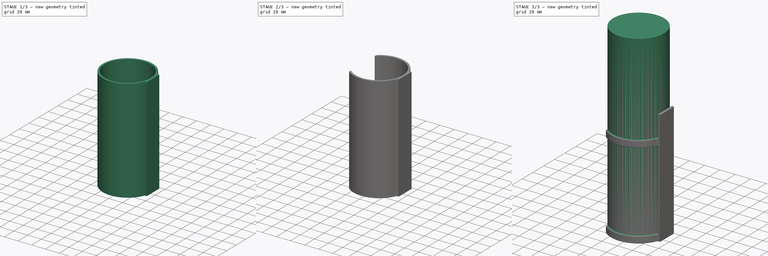
[diagram: build sequence overview — one tinted view per stage of 3, left to right]
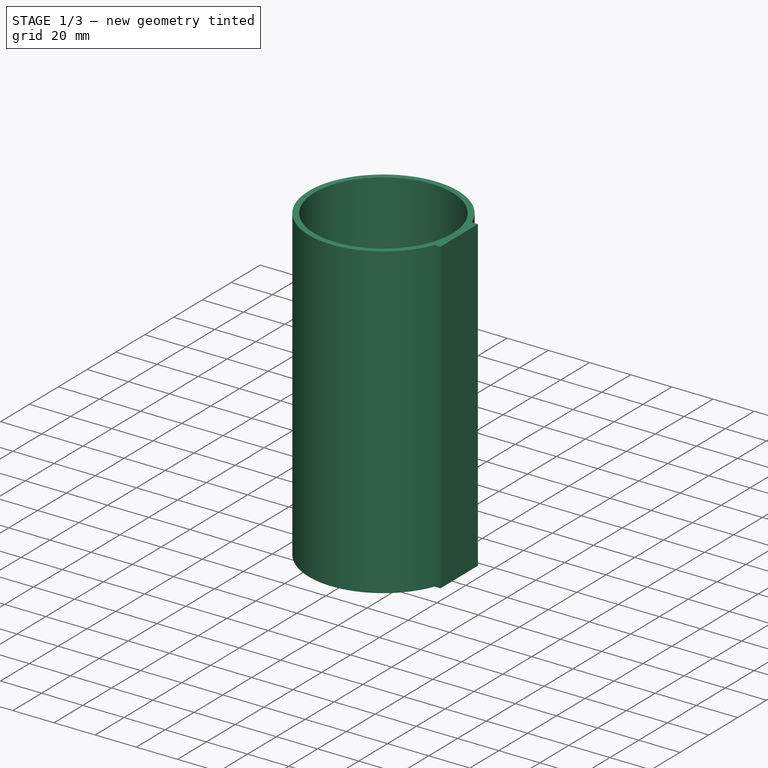
[diagram: stage 1 of 3 — iso view after this stage's code; geometry added in this stage tinted green]
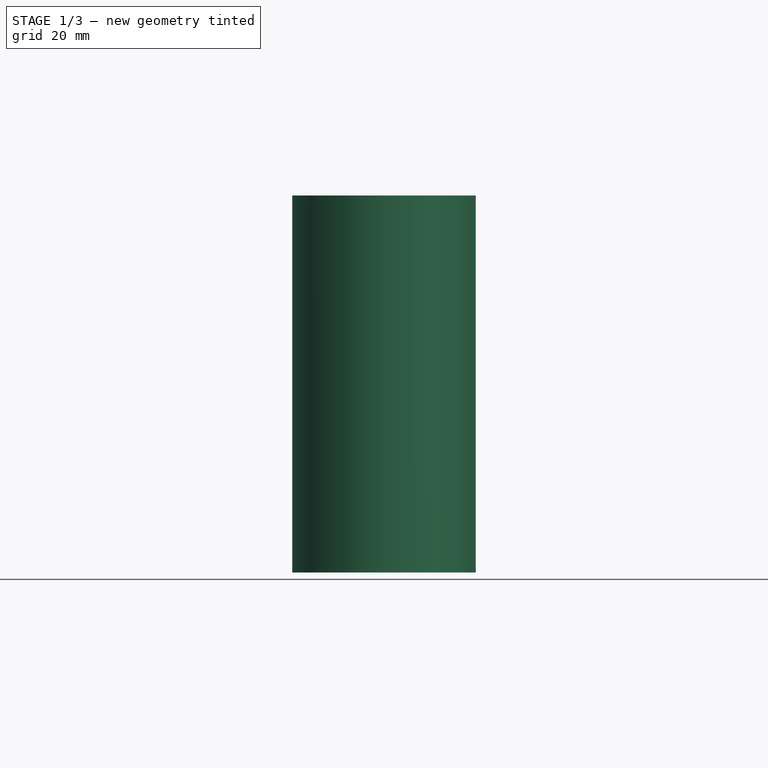
[diagram: stage 1 of 3 — front view after this stage's code; geometry added in this stage tinted green]
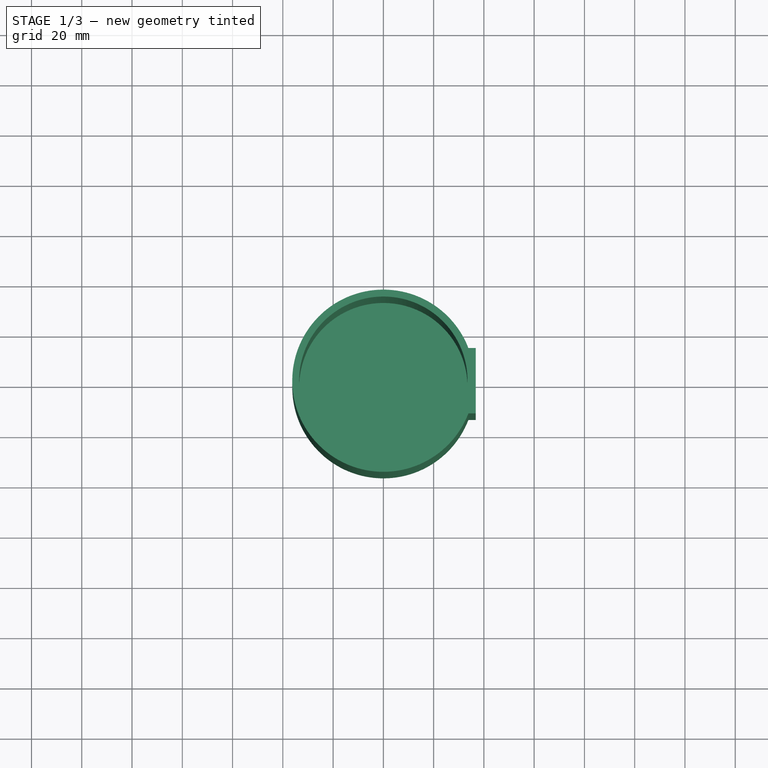
[diagram: stage 1 of 3 — top view after this stage's code; geometry added in this stage tinted green]
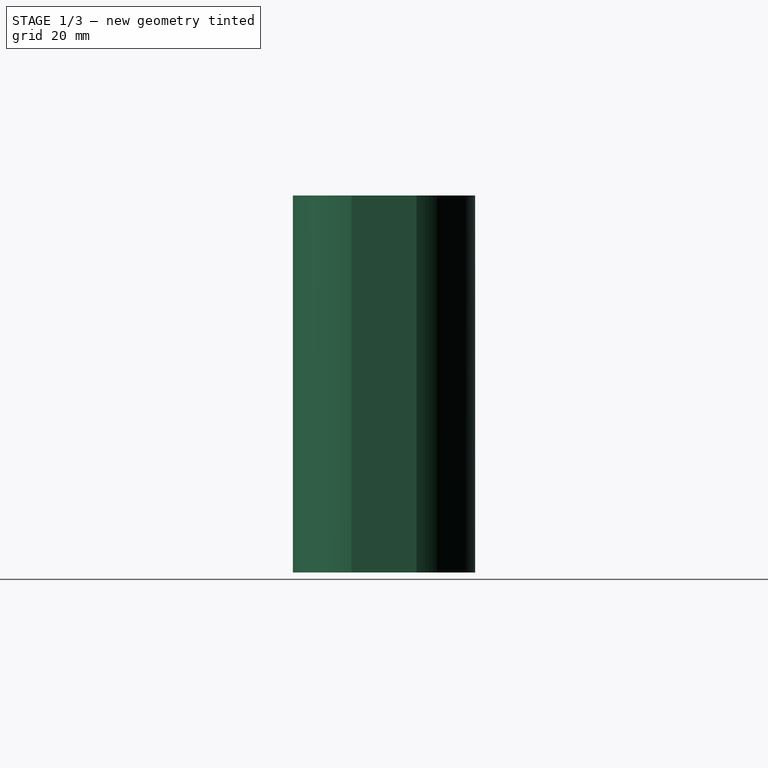
[diagram: stage 1 of 3 — right view after this stage's code; geometry added in this stage tinted green]
FCSTD DOCUMENT  (FreeCAD 1.0R39109 (Git))
Label: exinguisher_mount
License: All rights reserved
objects: Sketcher::SketchObject×6, PartDesign::Pad×4, PartDesign::Body×2, PartDesign::Pocket×2, PartDesign::Fillet×2, Spreadsheet::Sheet×1
note: 38 computed .brp shape members not serialized (recipe doc carries the construction recipe); baked Part::Feature solids carry a one-line shape summary decoded from their .brp

FEATURE [PartDesign::Body] Body  label="exitinguisher"
  AllowCompound = false
  Group = -> [Sketch,Pad]
  Origin = -> Origin
  Placement = pos=(0,0,3) rot=(0,0,1;0rad)
  Tip = -> Pad
  expr: .Placement.Base.z = <<dimensions>>.thickness
FEATURE [Sketcher::SketchObject] Sketch001
  ArcFitTolerance = 1e-06
  AttachmentSupport = -> [XY_Plane001]
  FullyConstrained = true
  MakeInternals = false
  MapMode = 5
  expr: Constraints[1] = <<dimensions>>.extinguisher_diameter + 2 * <<dimensions>>.thickness
  sketch-geometry (1):
    g0: Circle CenterX=0 CenterY=0 CenterZ=0 NormalX=0 NormalY=0 NormalZ=1 AngleXU=0 Radius=36.25
  constraints (2):
    c: Coincident(g0,g-1)
    c: Diameter(g0) = 72.5
FEATURE [PartDesign::Pad] Pad001
  Direction = (0,0,1)
  Length = 3
  Length2 = 10
  Profile = -> Sketch001
  ReferenceAxis = -> Sketch001 [N_Axis]
  Refine = true
  Suppressed = false
  Type = 0
  expr: Length = <<dimensions>>.thickness
FEATURE [Sketcher::SketchObject] Sketch002
  ArcFitTolerance = 1e-06
  AttachmentSupport = -> [XY_Plane001]
  FullyConstrained = true
  MakeInternals = false
  MapMode = 5
  expr: Constraints[1] = <<dimensions>>.extinguisher_diameter + <<dimensions>>.tolerance
  expr: Constraints[3] = <<dimensions>>.extinguisher_diameter + 2 * <<dimensions>>.thickness
  sketch-geometry (2):
    g0: Circle CenterX=0 CenterY=0 CenterZ=0 NormalX=0 NormalY=0 NormalZ=1 AngleXU=0 Radius=33.5
    g1: Circle CenterX=0 CenterY=0 CenterZ=0 NormalX=0 NormalY=0 NormalZ=1 AngleXU=0 Radius=36.25
  constraints (4):
    c: Coincident(g0,g-1)
    c: Diameter(g0) = 67
    c: Coincident(g1,g0)
    c: Diameter(g1) = 72.5
FEATURE [PartDesign::Pad] Pad002
  BaseFeature = -> Pad001
  Direction = (0,0,1)
  Length = 150
  Length2 = 10
  Profile = -> Sketch002
  ReferenceAxis = -> Sketch002 [N_Axis]
  Refine = true
  Suppressed = false
  Type = 0
  expr: Length = 150 mm
FEATURE [Sketcher::SketchObject] Sketch003
  ArcFitTolerance = 1e-06
  AttachmentSupport = -> [XY_Plane001]
  FullyConstrained = true
  MakeInternals = false
  MapMode = 5
  expr: Constraints[10] = <<dimensions>>.extinguisher_diameter / 2 + <<dimensions>>.tolerance
  expr: Constraints[11] = <<dimensions>>.thickness
  expr: Constraints[9] = 26 mm / 2
  sketch-geometry (4):
    g0: LineSegment StartX=36.75 StartY=13 StartZ=0 EndX=36.75 EndY=-13 EndZ=0
    g1: LineSegment StartX=36.75 StartY=-13 StartZ=0 EndX=33.75 EndY=-13 EndZ=0
    g2: LineSegment StartX=33.75 StartY=-13 StartZ=0 EndX=33.75 EndY=13 EndZ=0
    g3: LineSegment StartX=33.75 StartY=13 StartZ=0 EndX=36.75 EndY=13 EndZ=0
  constraints (12):
    c: Coincident(g0,g1)
    c: Coincident(g1,g2)
    c: Coincident(g2,g3)
    c: Coincident(g3,g0)
    c: Vertical(g0)
    c: Vertical(g2)
    c: Horizontal(g1)
    c: Horizontal(g3)
    c: DistanceY(g2,g2) = 26
    c: DistanceY(g1,g-1) = 13
    c: DistanceX(g-1,g1) = 33.75
    c: DistanceX(g1,g1) = 3
FEATURE [PartDesign::Pad] Pad003
  BaseFeature = -> Pad002
  Direction = (0,0,1)
  Length = 150
  Length2 = 10
  Profile = -> Sketch003
  ReferenceAxis = -> Sketch003 [N_Axis]
  Refine = true
  Suppressed = false
  Type = 0
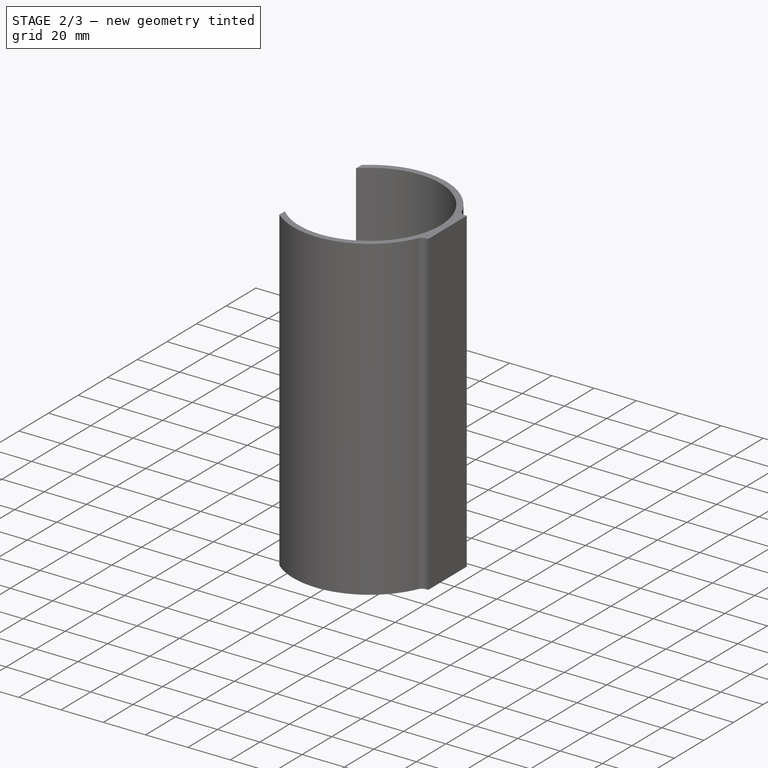
[diagram: stage 2 of 3 — iso view after this stage's code; geometry added in this stage tinted green]
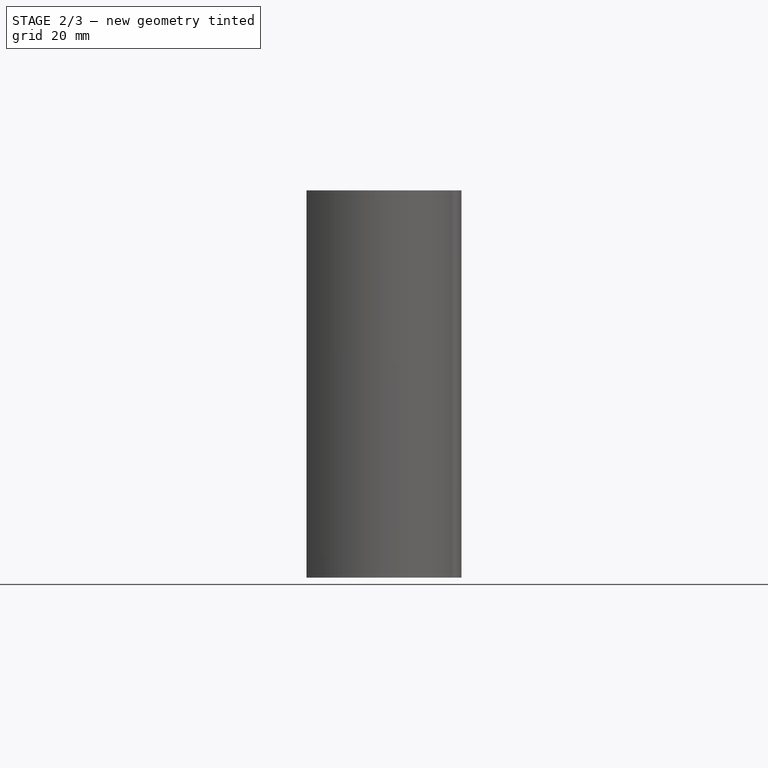
[diagram: stage 2 of 3 — front view after this stage's code; geometry added in this stage tinted green]
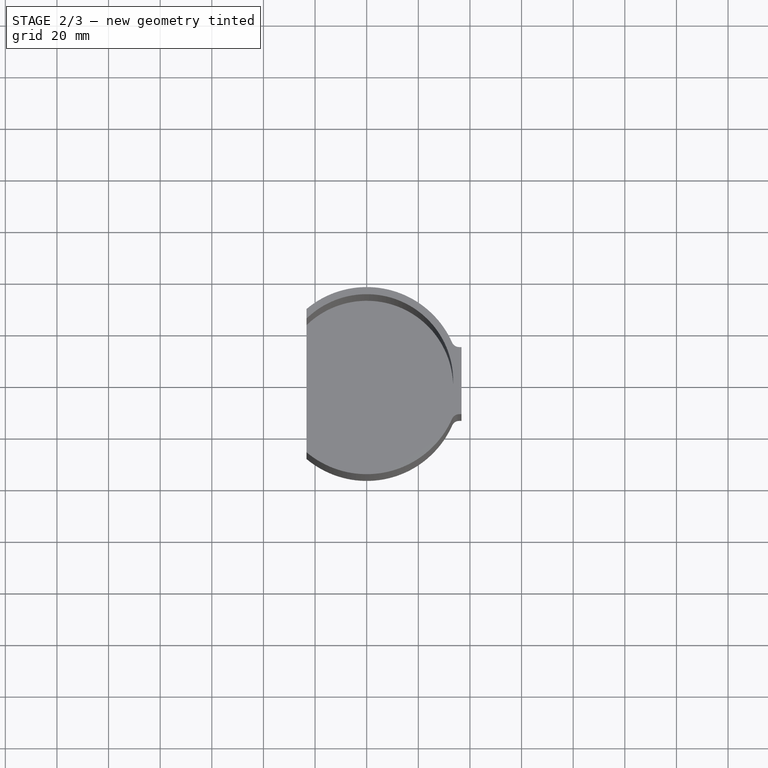
[diagram: stage 2 of 3 — top view after this stage's code; geometry added in this stage tinted green]
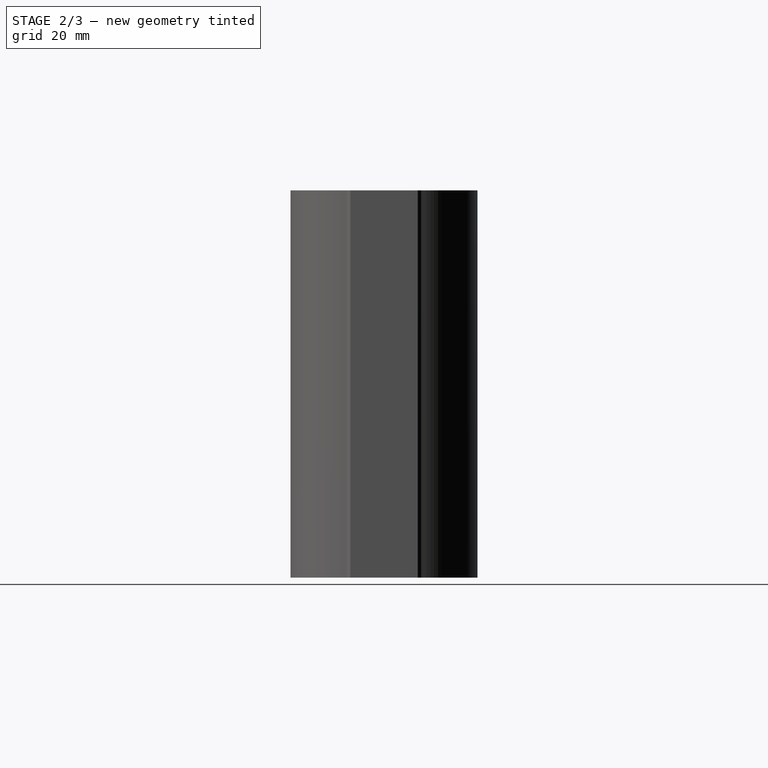
[diagram: stage 2 of 3 — right view after this stage's code; geometry added in this stage tinted green]
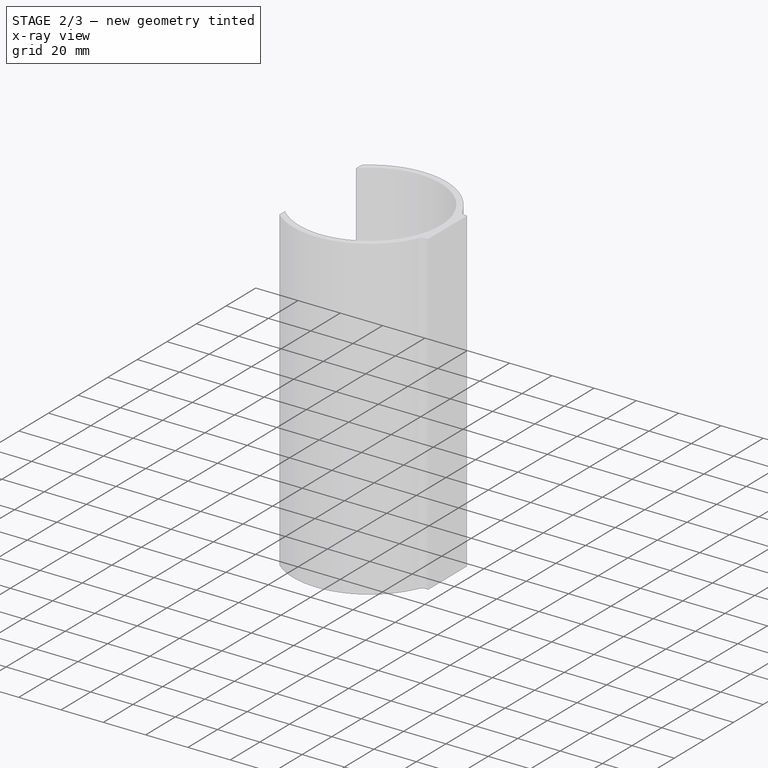
[diagram: stage 2 of 3 — x-ray composite at the iso view; earlier geometry ghosted, this stage's added geometry solid]
FEATURE [Sketcher::SketchObject] Sketch004
  ArcFitTolerance = 1e-06
  AttachmentSupport = -> [XY_Plane001]
  FullyConstrained = false
  MakeInternals = false
  MapMode = 5
  sketch-geometry (4):
    g0: LineSegment StartX=-51.7789 StartY=50.0168 StartZ=0 EndX=-51.7789 EndY=-58.3532 EndZ=0
    g1: LineSegment StartX=-51.7789 StartY=-58.3532 StartZ=0 EndX=-23.3374 EndY=-58.3532 EndZ=0
    g2: LineSegment StartX=-23.3374 StartY=-58.3532 StartZ=0 EndX=-23.3374 EndY=50.0168 EndZ=0
    g3: LineSegment StartX=-23.3374 StartY=50.0168 StartZ=0 EndX=-51.7789 EndY=50.0168 EndZ=0
  constraints (8):
    c: Coincident(g0,g1)
    c: Coincident(g1,g2)
    c: Coincident(g2,g3)
    c: Coincident(g3,g0)
    c: Vertical(g0)
    c: Vertical(g2)
    c: Horizontal(g1)
    c: Horizontal(g3)
FEATURE [PartDesign::Pocket] Pocket
  BaseFeature = -> Pad003
  Direction = (0,0,-1)
  Length = 5
  Length2 = 5
  Profile = -> Sketch004
  ReferenceAxis = -> Sketch004 [N_Axis]
  Refine = true
  Reversed = true
  Suppressed = false
  Type = 1
FEATURE [Sketcher::SketchObject] Sketch005
  ArcFitTolerance = 1e-06
  AttachmentSupport = -> [XZ_Plane001]
  FullyConstrained = false
  MakeInternals = false
  MapMode = 5
  Placement = pos=(0,0,0) rot=(1,0,0;1.5708rad)
  expr: Constraints[18] = <<dimensions>>.extinguisher_diameter / 2 + <<dimensions>>.tolerance
  expr: Constraints[19] = 3 * <<dimensions>>.thickness
  expr: Constraints[20] = 3 * <<dimensions>>.thickness
  sketch-geometry (8):
    g0: LineSegment StartX=-52.6544 StartY=159.018 StartZ=0 EndX=-52.6544 EndY=121.82 EndZ=0
    g1: LineSegment StartX=-52.6544 StartY=121.82 StartZ=0 EndX=33.75 EndY=121.82 EndZ=0
    g2: LineSegment StartX=33.75 StartY=121.82 StartZ=0 EndX=33.75 EndY=159.018 EndZ=0
    g3: LineSegment StartX=33.75 StartY=159.018 StartZ=0 EndX=-52.6544 EndY=159.018 EndZ=0
    g4: LineSegment StartX=-52.6544 StartY=112.82 StartZ=0 EndX=-52.6544 EndY=9 EndZ=0
    g5: LineSegment StartX=-52.6544 StartY=9 StartZ=0 EndX=33.75 EndY=9 EndZ=0
    g6: LineSegment StartX=33.75 StartY=9 StartZ=0 EndX=33.75 EndY=112.82 EndZ=0
    g7: LineSegment StartX=33.75 StartY=112.82 StartZ=0 EndX=-52.6544 EndY=112.82 EndZ=0
  constraints (21):
    c: Coincident(g0,g1)
    c: Coincident(g1,g2)
    c: Coincident(g2,g3)
    c: Coincident(g3,g0)
    c: Vertical(g0)
    c: Vertical(g2)
    c: Horizontal(g1)
    c: Horizontal(g3)
    c: Coincident(g4,g5)
    c: Coincident(g5,g6)
    c: Coincident(g6,g7)
    c: Coincident(g7,g4)
    c: Vertical(g4)
    c: Vertical(g6)
    c: Horizontal(g5)
    c: Horizontal(g7)
    c: Vertical(g6,g1)
    c: Vertical(g4,g0)
    c: DistanceX(g-1,g5) = 33.75
    c: DistanceY(g-1,g5) = 9
    c: DistanceY(g6,g1) = 9
FEATURE [PartDesign::Fillet] Fillet
  Base = -> Pocket [Edge9,Edge7]
  BaseFeature = -> Pocket
  Radius = 3
  Refine = true
  SupportTransform = false
  Suppressed = false
  UseAllEdges = false
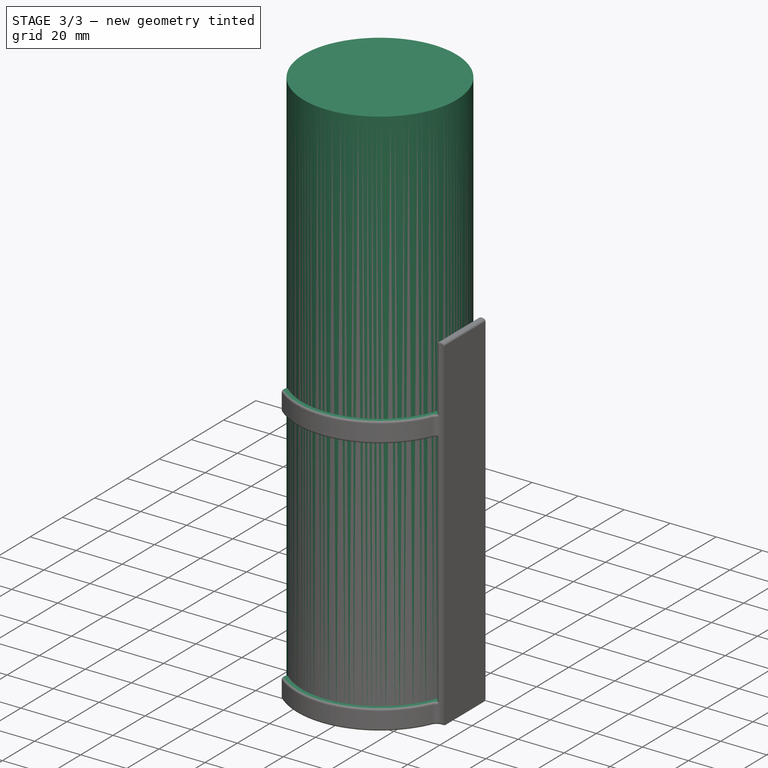
[diagram: stage 3 of 3 — iso view after this stage's code; geometry added in this stage tinted green]
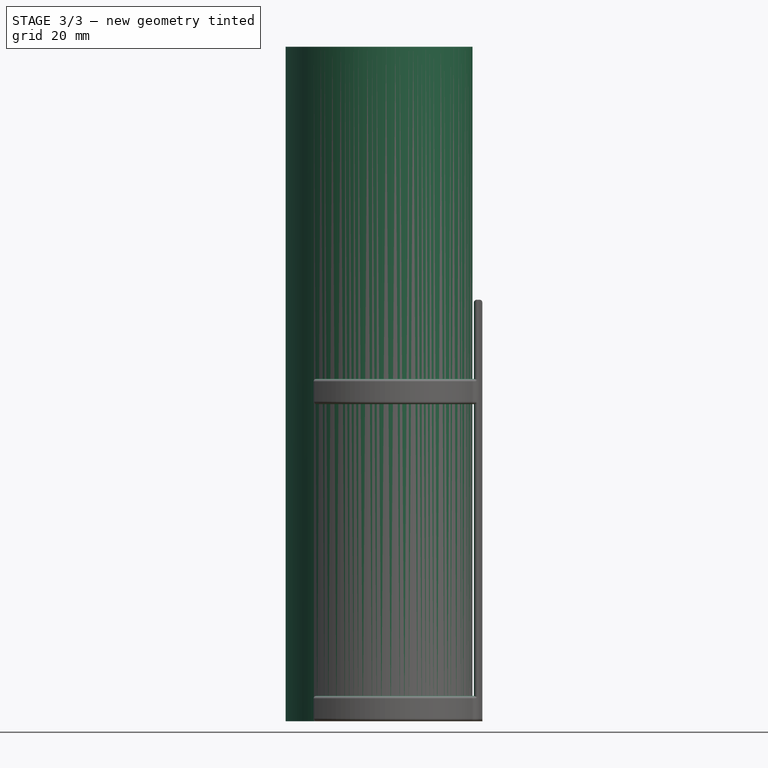
[diagram: stage 3 of 3 — front view after this stage's code; geometry added in this stage tinted green]
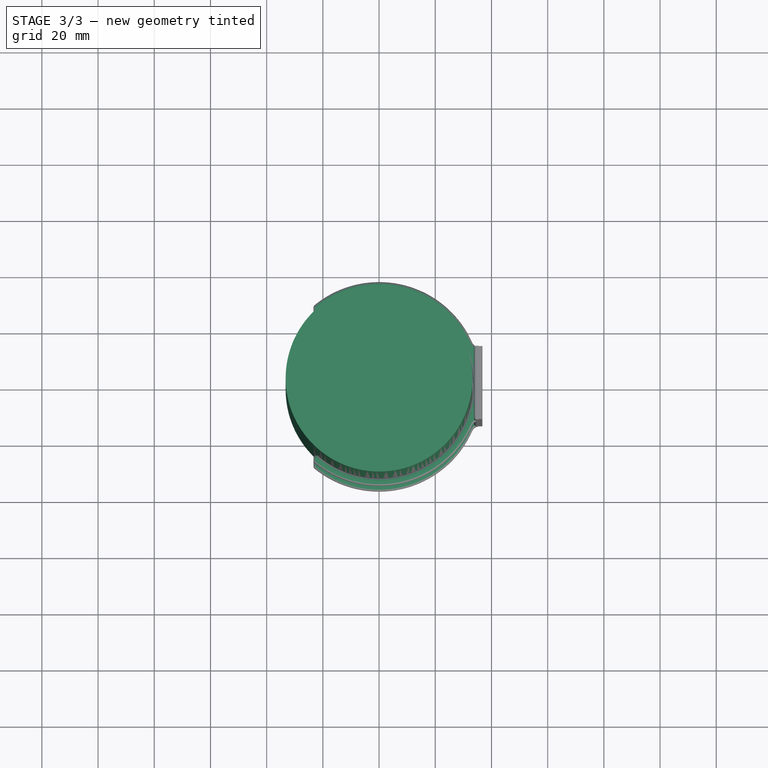
[diagram: stage 3 of 3 — top view after this stage's code; geometry added in this stage tinted green]
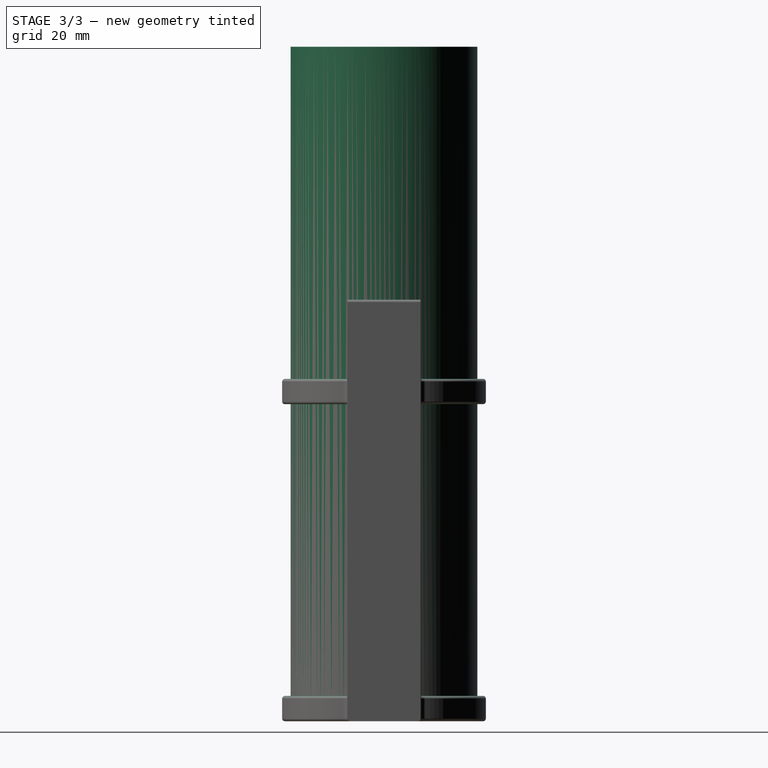
[diagram: stage 3 of 3 — right view after this stage's code; geometry added in this stage tinted green]
FEATURE [Spreadsheet::Sheet] Spreadsheet  label="dimensions"
  cells = A1='extinguisher_height; B1(extinguisher_height)==240 mm; A2='extinguisher_diameter; B2(extinguisher_diameter)==66.5 mm; A3='tolerance; B3(tolerance)==0.5 mm; A4='thickness; B4(thickness)==3 mm
FEATURE [Sketcher::SketchObject] Sketch
  ArcFitTolerance = 1e-06
  AttachmentSupport = -> [XY_Plane]
  FullyConstrained = true
  MakeInternals = false
  MapMode = 5
  expr: Constraints[1] = <<dimensions>>.extinguisher_diameter
  sketch-geometry (1):
    g0: Circle CenterX=0 CenterY=0 CenterZ=0 NormalX=0 NormalY=0 NormalZ=1 AngleXU=0 Radius=33.25
  constraints (2):
    c: Coincident(g0,g-1)
    c: Diameter(g0) = 66.5
FEATURE [PartDesign::Pad] Pad
  Direction = (0,0,1)
  Length = 240
  Length2 = 10
  Profile = -> Sketch
  ReferenceAxis = -> Sketch [N_Axis]
  Refine = true
  Suppressed = false
  Type = 0
  expr: Length = <<dimensions>>.extinguisher_height
FEATURE [PartDesign::Pocket] Pocket001
  BaseFeature = -> Fillet
  Direction = (0,1,-2e-16)
  Length = 5
  Length2 = 5
  Midplane = true
  Profile = -> Sketch005
  ReferenceAxis = -> Sketch005 [N_Axis]
  Refine = true
  Suppressed = false
  Type = 1
FEATURE [PartDesign::Fillet] Fillet001
  Base = -> Pocket001 [Edge43,Edge29,Edge28,Edge26,Edge25,Edge9,Edge30,Edge33,Edge31,Edge41,Edge11,Edge7,Edge32,Edge56,Edge45,Edge54,Edge47,Edge53,Edge61,Edge55,Edge60,Edge59,Edge46,Edge48,Edge50,Edge51,Edge49,Edge14,Edge18,Edge40,Edge36,Edge23,Edge21]
  BaseFeature = -> Pocket001
  Radius = 1
  Refine = true
  SupportTransform = false
  Suppressed = false
  UseAllEdges = false
FEATURE [PartDesign::Body] Body001  label="mount"
  AllowCompound = false
  Group = -> [Sketch001,Pad001,Sketch002,Pad002,Sketch003,Pad003,Sketch004,Pocket,Fillet,Sketch005,Pocket001,Fillet001]
  Origin = -> Origin001
  Tip = -> Fillet001
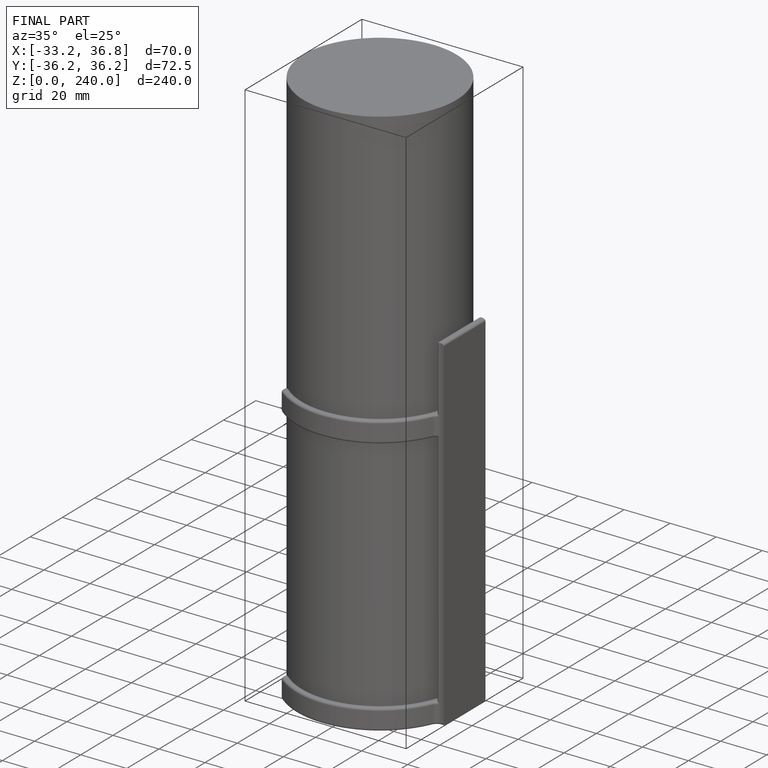
[diagram: finished part — iso view with bounding-box wireframe]
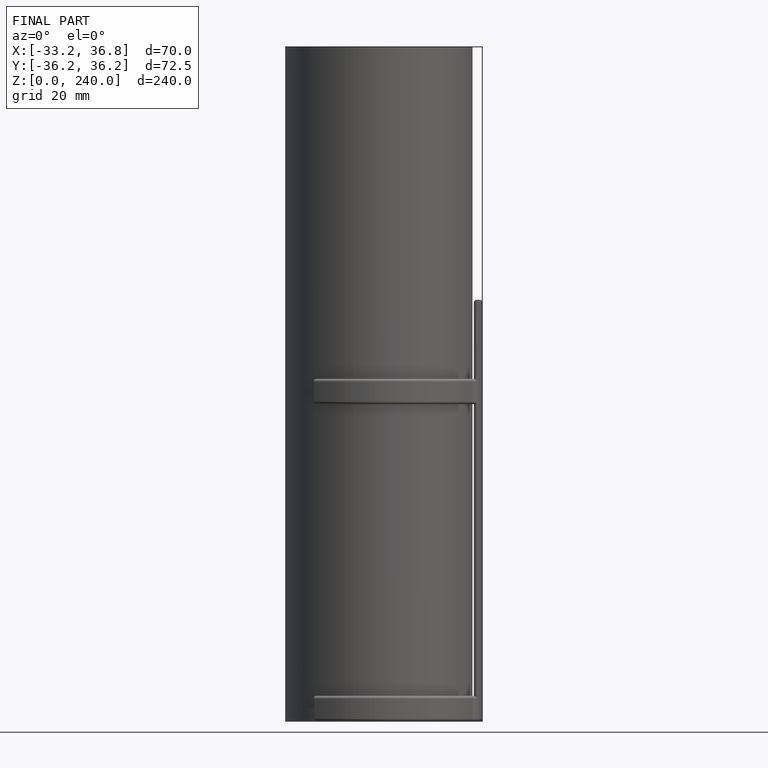
[diagram: finished part — front view with bounding-box wireframe]
